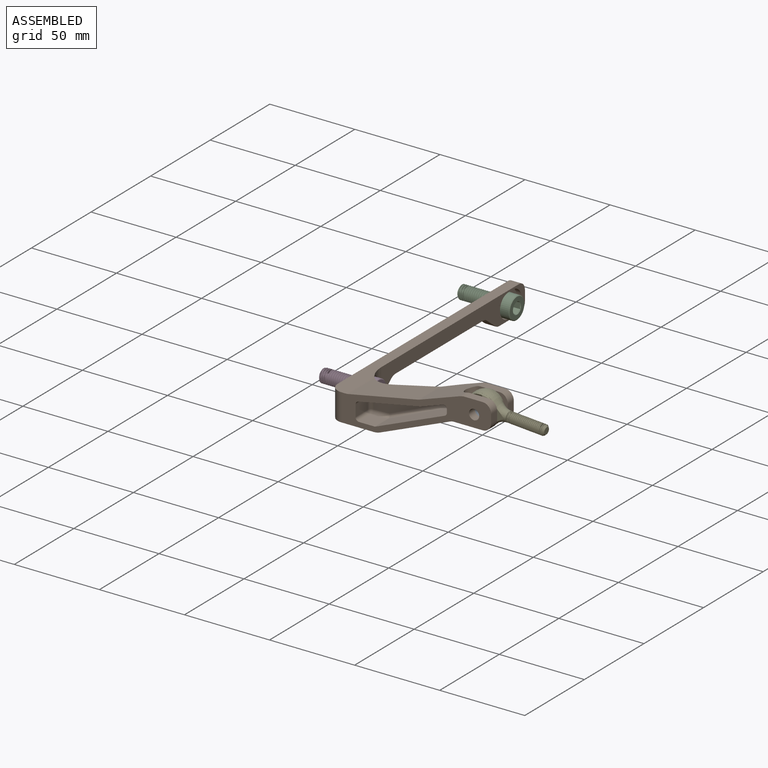
[diagram: assembled view]
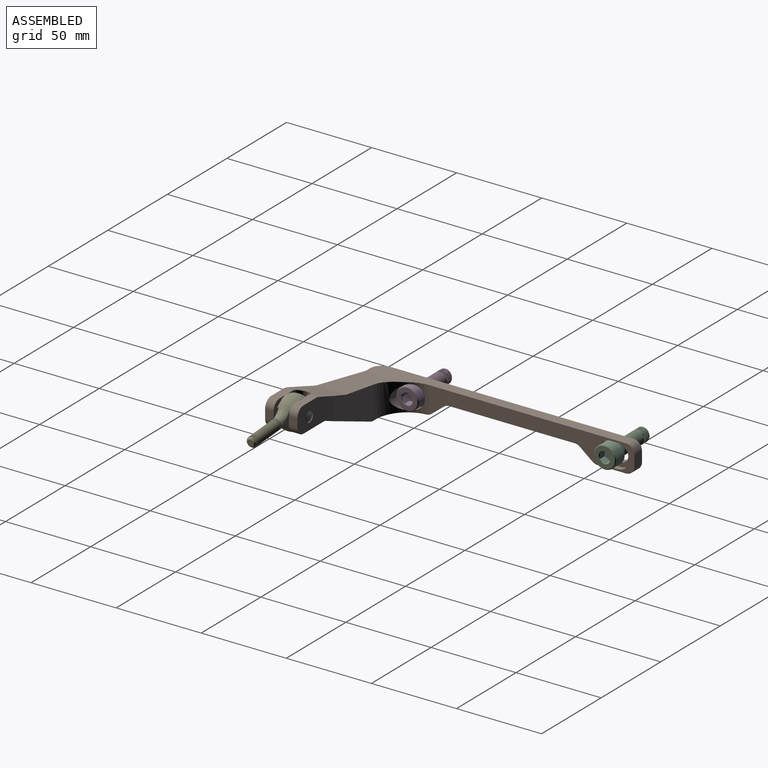
[diagram: assembled view, second angle]
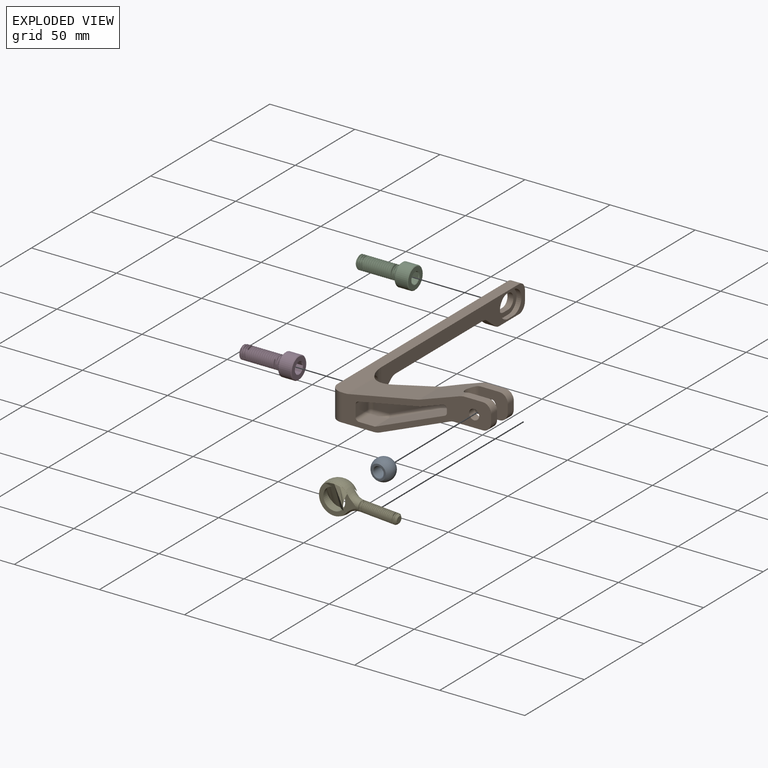
[diagram: exploded view]
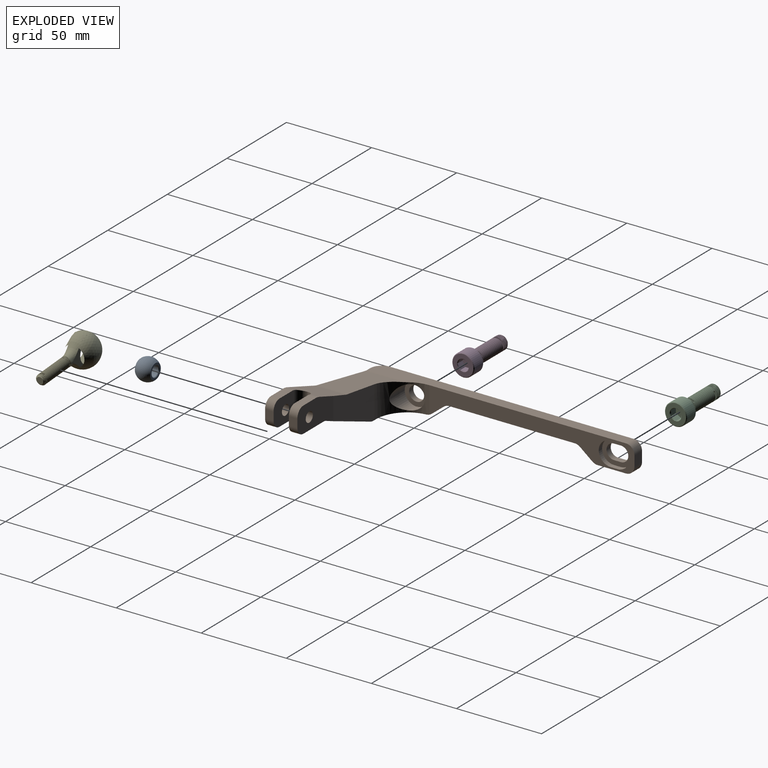
[diagram: exploded view, second angle]
ASSEMBLY  parts=5 mates=6
PART A: 6 faces, bbox 12.7x12.7x12.7 mm
  f0: sphere r=6.35mm, area 359.1mm2, adj f1,f2
  f1: plane 8.96x8.96mm, normal (0,0,1), area 28.8mm2, adj f0,f5
  f2: plane 8.96x8.96mm, normal (0,0,-1), area 28.8mm2, adj f0,f4
  f3: cylinder r=3mm len=8.4mm, axis (0,0,1), area 158.3mm2, adj f4,f5
  f4: cone r=3.3mm half-angle=45deg, axis (0,0,-1), area 8.4mm2, adj f2,f3
  f5: cone r=3mm half-angle=45deg, axis (0,0,1), area 8.4mm2, adj f1,f3
PART B: 82 faces, bbox 95x155x33 mm
  f0: plane 88x33mm, normal (0,-1,0), area 853.8mm2, adj f3,f14,f27,f32,f38,f39,f40,f42
  f1: cylinder r=18.5mm len=19.93mm, axis (0,0,1), area 322.4mm2, adj f7,f12,f26,f32,f35,f45,f47,f51
  f2: plane 10.31x5mm, normal (0,0,1), area 51.5mm2, adj f4,f6,f43,f50
  f3: plane 10.31x5mm, normal (0,0,1), area 51.5mm2, adj f0,f5,f44,f48
  f4: plane 17x15mm, normal (0,-1,0), area 215.9mm2, adj f2,f8,f13,f28,f38,f41,f43,f50
  f5: plane 17x15mm, normal (0,1,0), area 215.9mm2, adj f3,f9,f14,f27,f38,f42,f44,f48
  f6: plane 30x17.86mm, normal (0,1,0), area 391.7mm2, adj f2,f7,f13,f28,f38,f39,f40,f41
  f7: plane 38.73x28.52mm, normal (-0.08,1,0), area 619mm2, adj f1,f6,f39,f46,f47,f49,f52
  f8: cylinder r=5mm len=14.86mm, axis (0,0,-1), area 102.4mm2, adj f4,f9,f38,f46,f50
  f9: cylinder r=5mm len=14.86mm, axis (0,0,1), area 102.4mm2, adj f5,f8,f38,f46,f48
  f10: plane 148x16mm, normal (-1,0,0), area 1502.8mm2, adj f11,f15,f16,f17,f18,f19,f29,f30
  f11: plane 6.35x6mm, normal (0,1,0), area 38.1mm2, adj f10,f12,f53,f54
  f12: plane 120.56x16mm, normal (1,0,0), area 1010.8mm2, adj f1,f11,f20,f21,f22,f23,f29,f30
  f13: plane 5x5mm, normal (1,0,0), area 25mm2, adj f4,f6,f41,f43
  f14: plane 5x5mm, normal (1,0,0), area 25mm2, adj f0,f5,f42,f44
  f15: cylinder r=4.4mm len=8.8mm, axis (-1,0,0), area 96.8mm2, adj f10,f25
  f16: plane 4x3.5mm, normal (0,0,-1), area 14mm2, adj f10,f17,f19,f24
  f17: cylinder r=4.4mm len=8.8mm, axis (-1,0,0), area 48.4mm2, adj f10,f16,f18,f24
  f18: plane 4x3.5mm, normal (0,0,1), area 14mm2, adj f10,f17,f19,f24
  f19: cylinder r=4.4mm len=8.8mm, axis (-1,0,0), area 48.4mm2, adj f10,f16,f18,f24
  f20: cylinder r=7mm len=14mm, axis (1,0,0), area 62.7mm2, adj f12,f21,f23,f24
  f21: plane 4x2.85mm, normal (0,0,-1), area 11.4mm2, adj f12,f20,f22,f24
  f22: cylinder r=7mm len=14mm, axis (1,0,0), area 62.7mm2, adj f12,f21,f23,f24
  f23: plane 4x2.85mm, normal (0,0,1), area 11.4mm2, adj f12,f20,f22,f24
  f24: plane 18x14mm, normal (1,0,0), area 113.9mm2, adj f16,f17,f18,f19,f20,f21,f22,f23
  f25: plane 14x14mm, normal (1,0,0), area 93.1mm2, adj f15,f26
  f26: cylinder r=7mm len=14mm, axis (1,0,0), area 291.5mm2, adj f1,f25
  f27: cylinder r=3mm len=6mm, axis (0,-1,0), area 94.2mm2, adj f0,f5
  f28: cylinder r=3mm len=6mm, axis (0,-1,0), area 94.2mm2, adj f4,f6
  f29: plane 16.65x6.35mm, normal (0,0,-1), area 105.7mm2, adj f10,f12,f34,f54
  f30: plane 7.26x6.35mm, normal (0,-0.62,-0.78), area 59mm2, adj f10,f12,f34,f37
  f31: plane 73.69x6.35mm, normal (0,0,-1), area 467.9mm2, adj f10,f12,f36,f37
  f32: plane 32.65x26.03mm, normal (0,0,-1), area 584mm2, adj f0,f1,f10,f35,f52,f78
  f33: plane 7.26x6.35mm, normal (0,0.62,-0.78), area 59mm2, adj f10,f12,f35,f36
  f34: cylinder r=5mm len=6.35mm, axis (-1,0,0), area 21.4mm2, adj f10,f12,f29,f30
  f35: cylinder r=5mm len=6.44mm, axis (-1,0,0), area 21.5mm2, adj f1,f10,f12,f32,f33
  f36: cylinder r=5mm len=6.35mm, axis (1,0,0), area 21.4mm2, adj f10,f12,f31,f33
  f37: cylinder r=5mm len=6.35mm, axis (-1,0,0), area 21.4mm2, adj f10,f12,f30,f31
  f38: plane 19x17.02mm, normal (0,0,-1), area 181mm2, adj f0,f4,f5,f6,f8,f9,f40,f41
  f39: plane 41.27x19mm, normal (0.38,0,-0.93), area 795.4mm2, adj f0,f6,f7,f40,f52
  f40: cylinder r=5mm len=19mm, axis (0,1,0), area 36.9mm2, adj f0,f6,f38,f39
  f41: cylinder r=5mm len=5mm, axis (0,-1,0), area 39.3mm2, adj f4,f6,f13,f38
  f42: cylinder r=5mm len=5mm, axis (0,-1,0), area 39.3mm2, adj f0,f5,f14,f38
  f43: cylinder r=5mm len=5mm, axis (0,-1,0), area 39.3mm2, adj f2,f4,f6,f13
  f44: cylinder r=5mm len=5mm, axis (0,-1,0), area 39.3mm2, adj f0,f3,f5,f14
  f45: plane 150x9.39mm, normal (0,0,1), area 1025.6mm2, adj f0,f1,f10,f12,f51,f53,f78
  f46: plane 23.29x19mm, normal (-0.33,0,0.95), area 440.6mm2, adj f0,f6,f7,f8,f9,f48,f49,f50
  f47: plane 40.51x21.85mm, normal (-0.19,0,0.98), area 710.4mm2, adj f0,f1,f7,f49,f51
  f48: cylinder r=10mm len=5.25mm, axis (0,-1,0), area 16.7mm2, adj f0,f3,f5,f9,f46
  f49: cylinder r=10mm len=18.08mm, axis (0,1,0), area 25.1mm2, adj f0,f7,f46,f47
  f50: cylinder r=10mm len=5.25mm, axis (0,-1,0), area 16.7mm2, adj f2,f4,f6,f8,f46
  f51: cylinder r=10mm len=24.29mm, axis (0,1,0), area 44.3mm2, adj f0,f1,f45,f47
  f52: cylinder r=10mm len=16.27mm, axis (0,-1,0), area 62.6mm2, adj f0,f1,f7,f32,f39
  f53: cylinder r=5mm len=6.35mm, axis (1,0,0), area 49.9mm2, adj f10,f11,f12,f45
  f54: cylinder r=5mm len=6.35mm, axis (1,0,0), area 49.9mm2, adj f10,f11,f12,f29
  f55: plane 49.65x18.39mm, normal (0.08,-1,0), area 251.4mm2, adj f62,f63,f64,f65,f66,f67
  f56: plane 11x9.01mm, normal (0,0,1), area 95.9mm2, adj f0,f62,f70,f72
  f57: plane 40.64x16.63mm, normal (-0.38,0,0.93), area 552.2mm2, adj f0,f64,f72,f74
  f58: plane 14.15x1.76mm, normal (-1,0,0), area 24.9mm2, adj f0,f66,f74,f76
  f59: plane 10.3x6.76mm, normal (1,0,0), area 69.6mm2, adj f0,f63,f68,f70
  f60: plane 14.15x12.49mm, normal (0.33,0,-0.95), area 180.5mm2, adj f0,f67,f76,f79,f80
  f61: plane 35.95x13.09mm, normal (0.19,0,-0.98), area 428.4mm2, adj f0,f65,f68,f79
  f62: cylinder r=2mm len=9.16mm, axis (-1,-0.08,0), area 28.4mm2, adj f55,f56,f71,f73
  f63: cylinder r=2mm len=6.76mm, axis (0,0,1), area 20.2mm2, adj f55,f59,f69,f71
  f64: cylinder r=2mm len=41.56mm, axis (-0.92,-0.07,-0.38), area 140.9mm2, adj f55,f57,f73,f75
  f65: cylinder r=2mm len=36.82mm, axis (0.98,0.08,0.19), area 115mm2, adj f55,f61,f69,f80,f81
  f66: cylinder r=2mm len=2.15mm, axis (0,0,-1), area 5.8mm2, adj f55,f58,f75,f77
  f67: cylinder r=2mm len=13.59mm, axis (0.94,0.07,0.32), area 41.7mm2, adj f55,f60,f77,f81
  f68: cylinder r=2mm len=10.3mm, axis (0,-1,0), area 28.4mm2, adj f0,f59,f61,f69
  f69: sphere r=2mm, area 5.2mm2, adj f63,f65,f68
  f70: cylinder r=2mm len=10.3mm, axis (0,1,0), area 32.4mm2, adj f0,f56,f59,f71
  f71: sphere r=2mm, area 6mm2, adj f62,f63,f70
  f72: cylinder r=2mm len=11mm, axis (0,-1,0), area 8.5mm2, adj f0,f56,f57,f73
  f73: sphere r=2mm, area 1.6mm2, adj f62,f64,f72
  f74: cylinder r=2mm len=14.15mm, axis (0,-1,0), area 33.5mm2, adj f0,f57,f58,f75
  f75: sphere r=2mm, area 5mm2, adj f64,f66,f74
  f76: cylinder r=2mm len=14.15mm, axis (0,1,0), area 53.8mm2, adj f0,f58,f60,f77
  f77: sphere r=2mm, area 7.9mm2, adj f66,f67,f76
  f78: cylinder r=7mm len=16mm, axis (0,0,1), area 175.9mm2, adj f0,f10,f32,f45
  f79: cylinder r=7mm len=13.09mm, axis (0,1,0), area 12.8mm2, adj f0,f60,f61,f80
  f80: bspline ~1.56x1.19mm, area 0.1mm2, adj f60,f65,f79,f81
  f81: bspline ~2.09x2.02mm, area 1.9mm2, adj f65,f67,f80
PART C: 44 faces, bbox 14.3x14.3x34.8 mm
  f0: cylinder r=4mm len=8mm, axis (0,0,1), area 2.8mm2, adj f1,f20,f21,f23
  f1: cylinder r=4mm len=8mm, axis (0,0,1), area 3.9mm2, adj f0,f2,f20,f21
  f2: cylinder r=4mm len=8mm, axis (0,0,1), area 3.9mm2, adj f1,f3,f20,f21
  f3: cylinder r=4mm len=8mm, axis (0,0,1), area 3.9mm2, adj f2,f4,f20,f21
  f4: cylinder r=4mm len=8mm, axis (0,0,1), area 3.9mm2, adj f3,f5,f20,f21
  f5: cylinder r=4mm len=8mm, axis (0,0,1), area 3.9mm2, adj f4,f6,f20,f21
  f6: cylinder r=4mm len=8mm, axis (0,0,1), area 3.9mm2, adj f5,f7,f20,f21
  f7: cylinder r=4mm len=8mm, axis (0,0,1), area 3.9mm2, adj f6,f8,f20,f21
  f8: cylinder r=4mm len=8mm, axis (0,0,1), area 3.9mm2, adj f7,f9,f20,f21
  f9: cylinder r=4mm len=8mm, axis (0,0,1), area 3.9mm2, adj f8,f10,f20,f21
  f10: cylinder r=4mm len=8mm, axis (0,0,1), area 3.9mm2, adj f9,f11,f20,f21
  f11: cylinder r=4mm len=8mm, axis (0,0,1), area 3.9mm2, adj f10,f12,f20,f21
  f12: cylinder r=4mm len=8mm, axis (0,0,1), area 3.9mm2, adj f11,f13,f20,f21
  f13: cylinder r=4mm len=8mm, axis (0,0,1), area 3.9mm2, adj f12,f14,f20,f21
  f14: cylinder r=4mm len=8mm, axis (0,0,1), area 3.9mm2, adj f13,f15,f20,f21
  f15: cylinder r=4mm len=8mm, axis (0,0,1), area 3.9mm2, adj f14,f16,f20,f21
  f16: cylinder r=4mm len=8mm, axis (0,0,1), area 3.9mm2, adj f15,f17,f20,f21
  f17: cylinder r=4mm len=8mm, axis (0,0,1), area 3.9mm2, adj f16,f18,f20,f21
  f18: cylinder r=4mm len=8mm, axis (0,0,1), area 3.9mm2, adj f17,f19,f20,f21
  f19: cylinder r=4mm len=8mm, axis (0,0,1), area 9.6mm2, adj f18,f20,f21,f27,f43
  f20: bspline ~25.68x9.24mm, area 407.4mm2, adj f0,f1,f2,f3,f4,f5,f6,f7
  f21: bspline ~24.84x9.24mm, area 407.9mm2, adj f0,f1,f2,f3,f4,f5,f6,f7
  f22: cylinder r=3.19mm len=24.17mm, axis (0,0,-1), area 37.7mm2, adj f20,f21,f23,f43
  f23: cone r=2.93mm half-angle=55deg, axis (0,0,-1), area 16.8mm2, adj f0,f20,f21,f22,f24
  f24: plane 5.87x5.87mm, normal (0,0,1), area 27mm2, adj f23
  f25: cylinder r=6.5mm len=13mm, axis (0,0,1), area 294.9mm2, adj f41,f42
  f26: plane 12.22x12.22mm, normal (0,0,-1), area 79.6mm2, adj f28,f29,f30,f31,f32,f33,f41
  f27: plane 12.22x12.22mm, normal (0,0,1), area 67mm2, adj f19,f42
  f28: cone r=3.46mm half-angle=45deg, axis (0,0,-1), area 0mm2, adj f26,f35
  f29: cone r=3.46mm half-angle=45deg, axis (0,0,-1), area 0mm2, adj f26,f36
  f30: cone r=3.46mm half-angle=45deg, axis (0,0,-1), area 0mm2, adj f26,f37
  f31: cone r=3.46mm half-angle=45deg, axis (0,0,-1), area 0mm2, adj f26,f38
  f32: cone r=3.46mm half-angle=45deg, axis (0,0,-1), area 0mm2, adj f26,f39
  f33: cone r=3.46mm half-angle=45deg, axis (0,0,-1), area 0mm2, adj f26,f40
  f34: plane 6.93x6mm, normal (0,0,-1), area 31.2mm2, adj f35,f36,f37,f38,f39,f40
  f35: plane 5.81x4.31mm, normal (-0.5,-0.87,0), area 14.5mm2, adj f28,f34,f36,f40
  f36: plane 5.82x4.78mm, normal (-1,0,0), area 14.5mm2, adj f29,f34,f35,f37
  f37: plane 5.81x4.31mm, normal (-0.5,0.87,0), area 14.5mm2, adj f30,f34,f36,f38
  f38: plane 5.81x4.31mm, normal (0.5,0.87,0), area 14.5mm2, adj f31,f34,f37,f39
  f39: plane 5.82x4.78mm, normal (1,0,0), area 14.5mm2, adj f32,f34,f38,f40
  f40: plane 5.81x4.31mm, normal (0.5,-0.87,0), area 14.5mm2, adj f33,f34,f35,f39
  f41: cone r=6.11mm half-angle=45deg, axis (0,0,1), area 21.8mm2, adj f25,f26
  f42: cone r=6.5mm half-angle=45deg, axis (0,0,-1), area 21.8mm2, adj f25,f27
  f43: cone r=4mm half-angle=67.5deg, axis (0,0,-1), area 10.2mm2, adj f19,f20,f21,f22
PART D: same geometry as C
PART E: 13 faces, bbox 26x46x26 mm
  f0: cylinder r=3mm len=21mm, axis (0,1,0), area 49.6mm2, adj f3,f4,f6,f8
  f1: plane 4x4mm, normal (0,-1,0), area 12.6mm2, adj f2
  f2: cone r=3mm half-angle=45deg, axis (0,1,0), area 12.5mm2, adj f1,f3,f4,f5,f6
  f3: cone r=3mm half-angle=45deg, axis (0,1,0), area 1.7mm2, adj f0,f2,f4,f6
  f4: bspline ~22.13x6mm, area 269.3mm2, adj f0,f2,f3,f5,f7
  f5: cylinder r=2.35mm len=21.65mm, axis (0,1,0), area 40.1mm2, adj f2,f4,f6,f7
  f6: bspline ~22.5x6mm, area 269.4mm2, adj f0,f2,f3,f5,f7
  f7: plane 6.39x6.39mm, normal (0,-1,0), area 5.6mm2, adj f4,f5,f6,f8
  f8: torus R=11.83mm, axis (0,-1,0), area 118.8mm2, adj f0,f7,f9,f10,f11
  f9: sphere r=9.5mm, area 1292.8mm2, adj f8,f10,f11
  f10: plane 21.49x17.94mm, normal (0,0,1), area 138.9mm2, adj f8,f9,f12
  f11: plane 21.49x17.94mm, normal (0,0,-1), area 138.9mm2, adj f8,f9,f12
  f12: cylinder r=6.41mm len=12.83mm, axis (0,0,1), area 251.9mm2, adj f10,f11
PLACE A rot(axis=(-0.58,-0.58,-0.58),120deg) t=(54.13,-23.3,64.34)mm
PLACE B t=(-16.87,-32.8,37.34)mm fixed
PLACE C rot(axis=(-0.58,-0.58,0.58),120deg) t=(-38.37,108.2,47.34)mm
PLACE D rot(axis=(0,-1,0),90deg) t=(-38.37,-7.8,47.34)mm
PLACE E rot(axis=(-0.55,0.59,0.59),122.5deg) t=(82.09,-23.23,63.3)mm
MATE planar A.f3 <-> B.f4  axis (0,1,0) through (68.13,-18.8,64.34)mm
MATE planar E.f10 <-> B.f41  axis (0,1,0) through (80.62,-20.1,63.4)mm
MATE cylindrical E.f12 <-> A.f3  axis (0,1,0) through (68.13,-20.1,64.34)mm
MATE cylindrical E.f12 <-> B.f27  axis (0,1,0) through (68.13,-20.1,64.34)mm
MATE planar D.f0 <-> B.f15  axis (-1,0,0) through (-13.37,-7.8,47.34)mm
MATE cylindrical B.f15 <-> D.f0  axis (1,0,0) through (-13.37,-7.8,47.34)mm
